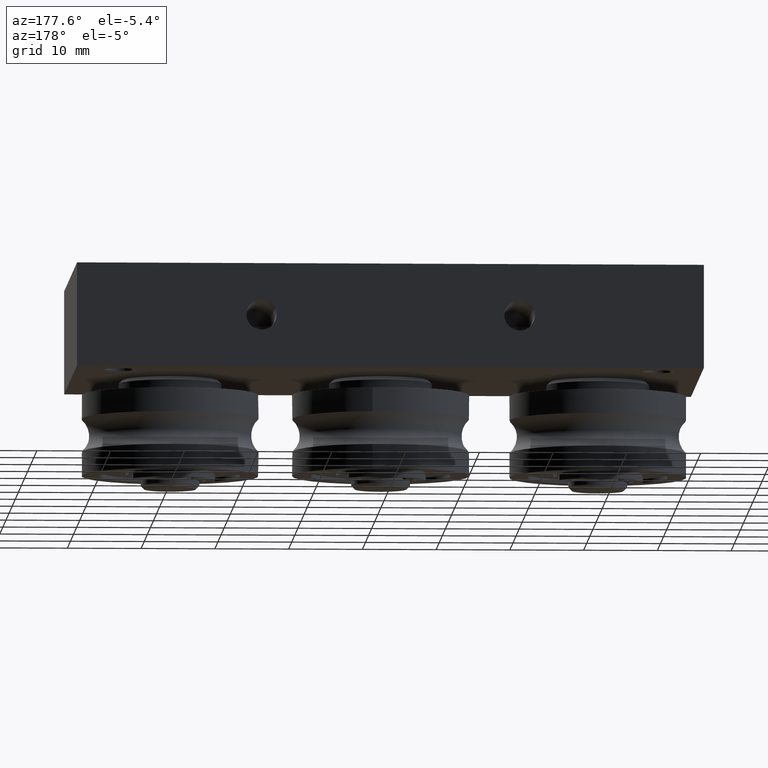
[diagram: clean part render]
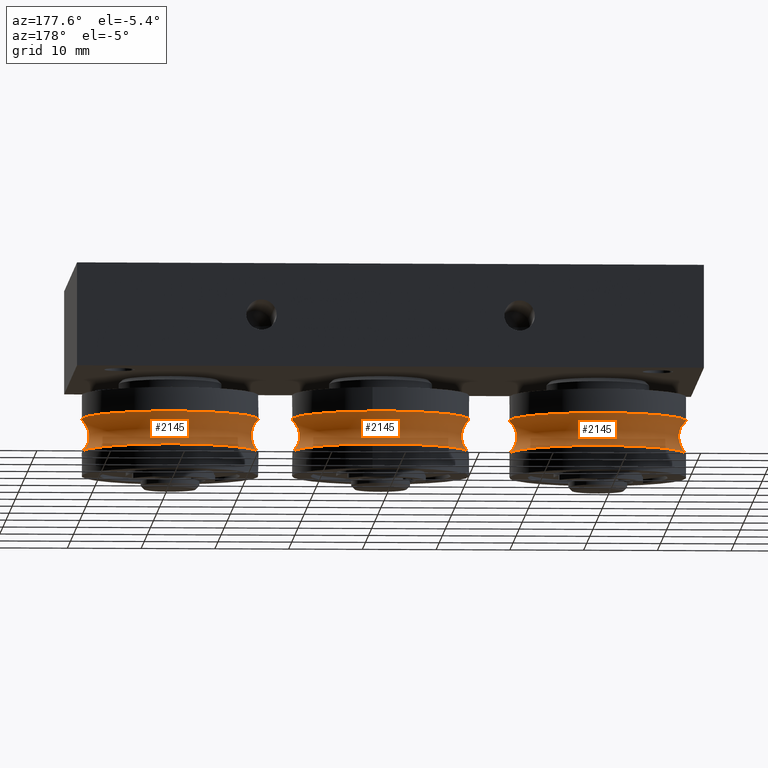
[diagram: same view with one multi-face feature highlighted, each face labeled with its STEP entity id]
A machine part, auxiliary view. The highlighted faces form ONE feature: a constant-radius fillet chain: 3 tangent blend faces with common blend radius 3 mm. The faces share edges in the B-rep.
Their STEP definitions:
[1] entity #2145 (Torus):
#91=TOROIDAL_SURFACE('',#2567,14.,3.);
#364=FACE_OUTER_BOUND('',#532,.T.);
#532=EDGE_LOOP('',(#1777,#1778,#1779,#1780,#1781,#1782));
#934=CIRCLE('',#2565,12.);
#935=CIRCLE('',#2566,12.);
#936=CIRCLE('',#2568,3.);
#937=CIRCLE('',#2569,12.);
#938=CIRCLE('',#2570,12.);
#1097=VERTEX_POINT('',#3746);
#1098=VERTEX_POINT('',#3747);
#1099=VERTEX_POINT('',#3752);
#1100=VERTEX_POINT('',#3754);
#1333=EDGE_CURVE('',#1097,#1098,#934,.T.);
#1335=EDGE_CURVE('',#1098,#1097,#935,.T.);
#1336=EDGE_CURVE('',#1098,#1099,#936,.T.);
#1337=EDGE_CURVE('',#1100,#1099,#937,.T.);
#1338=EDGE_CURVE('',#1099,#1100,#938,.T.);
#1777=ORIENTED_EDGE('',*,*,#1333,.T.);
#1778=ORIENTED_EDGE('',*,*,#1336,.T.);
#1779=ORIENTED_EDGE('',*,*,#1337,.F.);
#1780=ORIENTED_EDGE('',*,*,#1338,.F.);
#1781=ORIENTED_EDGE('',*,*,#1336,.F.);
#1782=ORIENTED_EDGE('',*,*,#1335,.T.);
#2145=ADVANCED_FACE('',(#364),#91,.F.);
#2565=AXIS2_PLACEMENT_3D('',#3748,#3088,#3089);
#2566=AXIS2_PLACEMENT_3D('',#3750,#3091,#3092);
#2567=AXIS2_PLACEMENT_3D('',#3751,#3093,#3094);
#2568=AXIS2_PLACEMENT_3D('',#3753,#3095,#3096);
#2569=AXIS2_PLACEMENT_3D('',#3755,#3097,#3098);
#2570=AXIS2_PLACEMENT_3D('',#3756,#3099,#3100);
#3088=DIRECTION('center_axis',(1.,0.,0.));
#3089=DIRECTION('ref_axis',(0.,1.,0.));
#3091=DIRECTION('center_axis',(1.,0.,0.));
#3092=DIRECTION('ref_axis',(0.,1.,0.));
#3093=DIRECTION('center_axis',(1.,0.,0.));
#3094=DIRECTION('ref_axis',(0.,0.,-1.));
#3095=DIRECTION('center_axis',(0.,-1.,-1.22464679914735E-16));
#3096=DIRECTION('ref_axis',(0.,-1.22464679914735E-16,1.));
#3097=DIRECTION('center_axis',(1.,0.,0.));
#3098=DIRECTION('ref_axis',(0.,1.,0.));
#3099=DIRECTION('center_axis',(1.,0.,0.));
#3100=DIRECTION('ref_axis',(0.,1.,0.));
#3746=CARTESIAN_POINT('',(-2.23606797749979,-12.,-1.46957615897682E-15));
#3747=CARTESIAN_POINT('',(-2.23606797749979,-1.46957615897682E-15,12.));
#3748=CARTESIAN_POINT('Origin',(-2.23606797749979,0.,0.));
#3750=CARTESIAN_POINT('Origin',(-2.23606797749979,0.,0.));
#3751=CARTESIAN_POINT('Origin',(0.,0.,0.));
#3752=CARTESIAN_POINT('',(2.23606797749979,-1.46957615897682E-15,12.));
#3753=CARTESIAN_POINT('Origin',(0.,-1.71450551880629E-15,14.));
#3754=CARTESIAN_POINT('',(2.23606797749979,-12.,-1.46957615897682E-15));
#3755=CARTESIAN_POINT('Origin',(2.23606797749979,0.,0.));
#3756=CARTESIAN_POINT('Origin',(2.23606797749979,0.,0.));
[2] entity #2145 (Torus):
#91=TOROIDAL_SURFACE('',#2567,14.,3.);
#364=FACE_OUTER_BOUND('',#532,.T.);
#532=EDGE_LOOP('',(#1777,#1778,#1779,#1780,#1781,#1782));
#934=CIRCLE('',#2565,12.);
#935=CIRCLE('',#2566,12.);
#936=CIRCLE('',#2568,3.);
#937=CIRCLE('',#2569,12.);
#938=CIRCLE('',#2570,12.);
#1097=VERTEX_POINT('',#3746);
#1098=VERTEX_POINT('',#3747);
#1099=VERTEX_POINT('',#3752);
#1100=VERTEX_POINT('',#3754);
#1333=EDGE_CURVE('',#1097,#1098,#934,.T.);
#1335=EDGE_CURVE('',#1098,#1097,#935,.T.);
#1336=EDGE_CURVE('',#1098,#1099,#936,.T.);
#1337=EDGE_CURVE('',#1100,#1099,#937,.T.);
#1338=EDGE_CURVE('',#1099,#1100,#938,.T.);
#1777=ORIENTED_EDGE('',*,*,#1333,.T.);
#1778=ORIENTED_EDGE('',*,*,#1336,.T.);
#1779=ORIENTED_EDGE('',*,*,#1337,.F.);
#1780=ORIENTED_EDGE('',*,*,#1338,.F.);
#1781=ORIENTED_EDGE('',*,*,#1336,.F.);
#1782=ORIENTED_EDGE('',*,*,#1335,.T.);
#2145=ADVANCED_FACE('',(#364),#91,.F.);
#2565=AXIS2_PLACEMENT_3D('',#3748,#3088,#3089);
#2566=AXIS2_PLACEMENT_3D('',#3750,#3091,#3092);
#2567=AXIS2_PLACEMENT_3D('',#3751,#3093,#3094);
#2568=AXIS2_PLACEMENT_3D('',#3753,#3095,#3096);
#2569=AXIS2_PLACEMENT_3D('',#3755,#3097,#3098);
#2570=AXIS2_PLACEMENT_3D('',#3756,#3099,#3100);
#3088=DIRECTION('center_axis',(1.,0.,0.));
#3089=DIRECTION('ref_axis',(0.,1.,0.));
#3091=DIRECTION('center_axis',(1.,0.,0.));
#3092=DIRECTION('ref_axis',(0.,1.,0.));
#3093=DIRECTION('center_axis',(1.,0.,0.));
#3094=DIRECTION('ref_axis',(0.,0.,-1.));
#3095=DIRECTION('center_axis',(0.,-1.,-1.22464679914735E-16));
#3096=DIRECTION('ref_axis',(0.,-1.22464679914735E-16,1.));
#3097=DIRECTION('center_axis',(1.,0.,0.));
#3098=DIRECTION('ref_axis',(0.,1.,0.));
#3099=DIRECTION('center_axis',(1.,0.,0.));
#3100=DIRECTION('ref_axis',(0.,1.,0.));
#3746=CARTESIAN_POINT('',(-2.23606797749979,-12.,-1.46957615897682E-15));
#3747=CARTESIAN_POINT('',(-2.23606797749979,-1.46957615897682E-15,12.));
#3748=CARTESIAN_POINT('Origin',(-2.23606797749979,0.,0.));
#3750=CARTESIAN_POINT('Origin',(-2.23606797749979,0.,0.));
#3751=CARTESIAN_POINT('Origin',(0.,0.,0.));
#3752=CARTESIAN_POINT('',(2.23606797749979,-1.46957615897682E-15,12.));
#3753=CARTESIAN_POINT('Origin',(0.,-1.71450551880629E-15,14.));
#3754=CARTESIAN_POINT('',(2.23606797749979,-12.,-1.46957615897682E-15));
#3755=CARTESIAN_POINT('Origin',(2.23606797749979,0.,0.));
#3756=CARTESIAN_POINT('Origin',(2.23606797749979,0.,0.));
[3] entity #2145 (Torus):
#91=TOROIDAL_SURFACE('',#2567,14.,3.);
#364=FACE_OUTER_BOUND('',#532,.T.);
#532=EDGE_LOOP('',(#1777,#1778,#1779,#1780,#1781,#1782));
#934=CIRCLE('',#2565,12.);
#935=CIRCLE('',#2566,12.);
#936=CIRCLE('',#2568,3.);
#937=CIRCLE('',#2569,12.);
#938=CIRCLE('',#2570,12.);
#1097=VERTEX_POINT('',#3746);
#1098=VERTEX_POINT('',#3747);
#1099=VERTEX_POINT('',#3752);
#1100=VERTEX_POINT('',#3754);
#1333=EDGE_CURVE('',#1097,#1098,#934,.T.);
#1335=EDGE_CURVE('',#1098,#1097,#935,.T.);
#1336=EDGE_CURVE('',#1098,#1099,#936,.T.);
#1337=EDGE_CURVE('',#1100,#1099,#937,.T.);
#1338=EDGE_CURVE('',#1099,#1100,#938,.T.);
#1777=ORIENTED_EDGE('',*,*,#1333,.T.);
#1778=ORIENTED_EDGE('',*,*,#1336,.T.);
#1779=ORIENTED_EDGE('',*,*,#1337,.F.);
#1780=ORIENTED_EDGE('',*,*,#1338,.F.);
#1781=ORIENTED_EDGE('',*,*,#1336,.F.);
#1782=ORIENTED_EDGE('',*,*,#1335,.T.);
#2145=ADVANCED_FACE('',(#364),#91,.F.);
#2565=AXIS2_PLACEMENT_3D('',#3748,#3088,#3089);
#2566=AXIS2_PLACEMENT_3D('',#3750,#3091,#3092);
#2567=AXIS2_PLACEMENT_3D('',#3751,#3093,#3094);
#2568=AXIS2_PLACEMENT_3D('',#3753,#3095,#3096);
#2569=AXIS2_PLACEMENT_3D('',#3755,#3097,#3098);
#2570=AXIS2_PLACEMENT_3D('',#3756,#3099,#3100);
#3088=DIRECTION('center_axis',(1.,0.,0.));
#3089=DIRECTION('ref_axis',(0.,1.,0.));
#3091=DIRECTION('center_axis',(1.,0.,0.));
#3092=DIRECTION('ref_axis',(0.,1.,0.));
#3093=DIRECTION('center_axis',(1.,0.,0.));
#3094=DIRECTION('ref_axis',(0.,0.,-1.));
#3095=DIRECTION('center_axis',(0.,-1.,-1.22464679914735E-16));
#3096=DIRECTION('ref_axis',(0.,-1.22464679914735E-16,1.));
#3097=DIRECTION('center_axis',(1.,0.,0.));
#3098=DIRECTION('ref_axis',(0.,1.,0.));
#3099=DIRECTION('center_axis',(1.,0.,0.));
#3100=DIRECTION('ref_axis',(0.,1.,0.));
#3746=CARTESIAN_POINT('',(-2.23606797749979,-12.,-1.46957615897682E-15));
#3747=CARTESIAN_POINT('',(-2.23606797749979,-1.46957615897682E-15,12.));
#3748=CARTESIAN_POINT('Origin',(-2.23606797749979,0.,0.));
#3750=CARTESIAN_POINT('Origin',(-2.23606797749979,0.,0.));
#3751=CARTESIAN_POINT('Origin',(0.,0.,0.));
#3752=CARTESIAN_POINT('',(2.23606797749979,-1.46957615897682E-15,12.));
#3753=CARTESIAN_POINT('Origin',(0.,-1.71450551880629E-15,14.));
#3754=CARTESIAN_POINT('',(2.23606797749979,-12.,-1.46957615897682E-15));
#3755=CARTESIAN_POINT('Origin',(2.23606797749979,0.,0.));
#3756=CARTESIAN_POINT('Origin',(2.23606797749979,0.,0.));